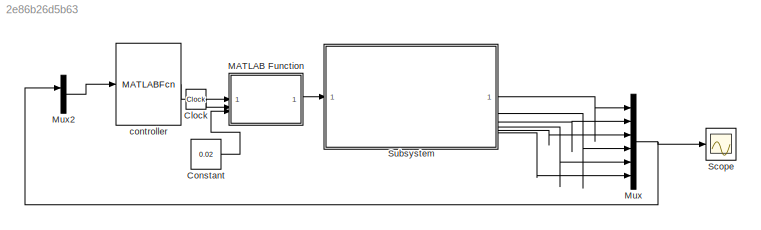
MODEL slx_2e86b26d5b63
KIND model
CONFIG AbsTol = auto
CONFIG EnableMultiTasking = off
CONFIG FixedStep = auto
CONFIG MaxStep = auto
CONFIG MinStep = auto
CONFIG RelTol = 1e-3
CONFIG SampleTimeConstraint = Unconstrained
CONFIG SolverName = VariableStepAuto
CONFIG StartTime = 0.0
CONFIG StopTime = 10.0
BLOCK [Clock] Clock
BLOCK [Constant] Constant
  Value = 0.02
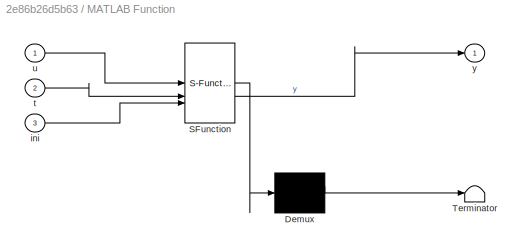
BLOCK [SubSystem] MATLAB Function
  ErrorFcn = Stateflow.Translate.translate
  PermitHierarchicalResolution = ExplicitOnly
  SFBlockType = MATLAB Function
  TreatAsAtomicUnit = on
BLOCK [Demux] MATLAB Function/ Demux 
  Outputs = 1
BLOCK [S-Function] MATLAB Function/ SFunction 
  EnableBusSupport = on
  FunctionName = sf_sfun
  PortCounts = [3 2]
  SFcnIsStateOwnerBlock = off
  SFunctionDeploymentMode = off
  Tag = Stateflow S-Function 1
BLOCK [Terminator] MATLAB Function/ Terminator 
BLOCK [Inport] MATLAB Function/ini
  Port = 3
BLOCK [Inport] MATLAB Function/t
  Port = 2
BLOCK [Inport] MATLAB Function/u
BLOCK [Outport] MATLAB Function/y
BLOCK [Mux] Mux
  DisplayOption = bar
  Inputs = 6
BLOCK [Mux] Mux2
  DisplayOption = bar
  Inputs = 1
BLOCK [Scope] Scope
  Floating = off
  NumInputPorts = 1
  ScopeSpecificationString = Simulink.scopes.TimeScopeBlockCfg('CurrentConfiguration', extmgr.ConfigurationSet(extmgr.Configuration('Core','General UI',true),extmgr.Configuration('Core','Source UI',true),extmgr.Configuration('Sources','WiredSimulink',true,'DataLoggingSaveFormat','Array','DataLoggingLimitDataPoints',true,'DataLoggingDecimation','1'),extmgr.Configuration('Visuals','Time Domain',true,'SerializedDisplays',{struct...<+1710ch>
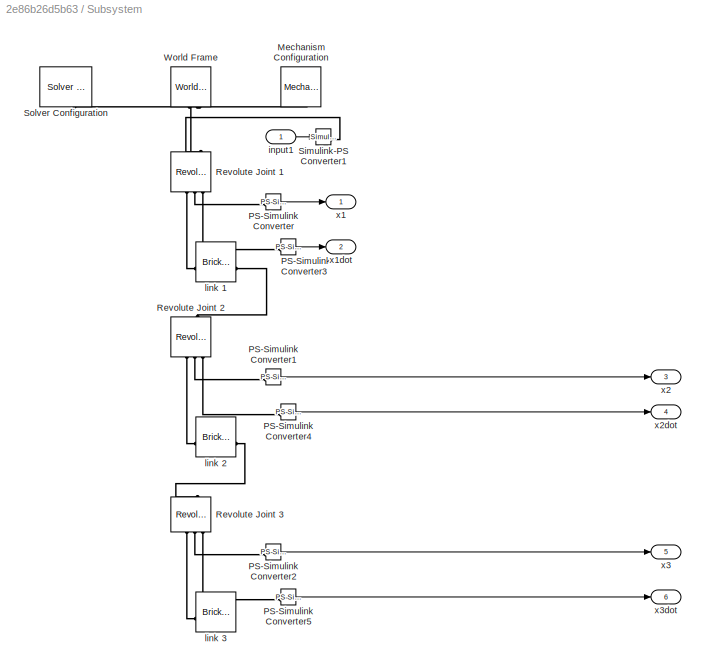
BLOCK [SubSystem] Subsystem
BLOCK [Reference] Subsystem/Mechanism Configuration  REF=sm_lib/Utilities/Mechanism
Configuration
  NameLocation = right
  SourceBlock = sm_lib/Utilities/Mechanism\nConfiguration
  SourceType = Mechanism\nConfiguration
BLOCK [Reference] Subsystem/PS-Simulink Converter  REF=nesl_utility/PS-Simulink
Converter
  SourceBlock = nesl_utility/PS-Simulink\nConverter
  SourceType = PS-Simulink\nConverter
BLOCK [Reference] Subsystem/PS-Simulink Converter1  REF=nesl_utility/PS-Simulink
Converter
  SourceBlock = nesl_utility/PS-Simulink\nConverter
  SourceType = PS-Simulink\nConverter
BLOCK [Reference] Subsystem/PS-Simulink Converter2  REF=nesl_utility/PS-Simulink
Converter
  SourceBlock = nesl_utility/PS-Simulink\nConverter
  SourceType = PS-Simulink\nConverter
BLOCK [Reference] Subsystem/PS-Simulink Converter3  REF=nesl_utility/PS-Simulink
Converter
  SourceBlock = nesl_utility/PS-Simulink\nConverter
  SourceType = PS-Simulink\nConverter
BLOCK [Reference] Subsystem/PS-Simulink Converter4  REF=nesl_utility/PS-Simulink
Converter
  SourceBlock = nesl_utility/PS-Simulink\nConverter
  SourceType = PS-Simulink\nConverter
BLOCK [Reference] Subsystem/PS-Simulink Converter5  REF=nesl_utility/PS-Simulink
Converter
  SourceBlock = nesl_utility/PS-Simulink\nConverter
  SourceType = PS-Simulink\nConverter
BLOCK [Reference] Subsystem/Revolute Joint 1  REF=sm_lib/Joints/Revolute Joint
  NameLocation = right
  SourceBlock = sm_lib/Joints/Revolute Joint
  SourceType = Revolute Joint
BLOCK [Reference] Subsystem/Revolute Joint 2  REF=sm_lib/Joints/Revolute Joint
  NameLocation = right
  SourceBlock = sm_lib/Joints/Revolute Joint
  SourceType = Revolute Joint
BLOCK [Reference] Subsystem/Revolute Joint 3  REF=sm_lib/Joints/Revolute Joint
  NameLocation = right
  SourceBlock = sm_lib/Joints/Revolute Joint
  SourceType = Revolute Joint
BLOCK [Reference] Subsystem/Simulink-PS Converter1  REF=nesl_utility/Simulink-PS
Converter
  SourceBlock = nesl_utility/Simulink-PS\nConverter
  SourceType = Simulink-PS\nConverter
BLOCK [Reference] Subsystem/Solver Configuration  REF=nesl_utility/Solver
Configuration
  NameLocation = right
  SourceBlock = nesl_utility/Solver\nConfiguration
  SourceType = Solver\nConfiguration
BLOCK [Reference] Subsystem/World Frame  REF=sm_lib/Frames and
Transforms/World Frame
  NameLocation = right
  SourceBlock = sm_lib/Frames and\nTransforms/World Frame
  SourceType = World Frame
BLOCK [Inport] Subsystem/input1
BLOCK [Reference] Subsystem/link 1  REF=sm_lib/Body Elements/Brick Solid
  NameLocation = top
  SourceBlock = sm_lib/Body Elements/Brick Solid
  SourceType = Brick Solid
BLOCK [Reference] Subsystem/link 2  REF=sm_lib/Body Elements/Brick Solid
  NameLocation = top
  SourceBlock = sm_lib/Body Elements/Brick Solid
  SourceType = Brick Solid
BLOCK [Reference] Subsystem/link 3  REF=sm_lib/Body Elements/Brick Solid
  NameLocation = top
  SourceBlock = sm_lib/Body Elements/Brick Solid
  SourceType = Brick Solid
BLOCK [Outport] Subsystem/x1
BLOCK [Outport] Subsystem/x1dot
  Port = 2
BLOCK [Outport] Subsystem/x2
  Port = 3
BLOCK [Outport] Subsystem/x2dot
  Port = 4
BLOCK [Outport] Subsystem/x3
  Port = 5
BLOCK [Outport] Subsystem/x3dot
  Port = 6
BLOCK [MATLABFcn] controller
  MATLABFcn = Fast_loop_controller
  OutputDimensions = 1
LINE Clock:1 -> MATLAB Function:2
LINE Constant:1 -> MATLAB Function:3
LINE MATLAB Function:1 -> Subsystem:1
LINE Mux2:1 -> controller:1
NET Mux:1 -> Mux2:1, Scope:1
LINE Subsystem/PS-Simulink Converter1:1 -> Subsystem/x2:1
LINE Subsystem/PS-Simulink Converter2:1 -> Subsystem/x3:1
LINE Subsystem/PS-Simulink Converter3:1 -> Subsystem/x1dot:1
LINE Subsystem/PS-Simulink Converter4:1 -> Subsystem/x2dot:1
LINE Subsystem/PS-Simulink Converter5:1 -> Subsystem/x3dot:1
LINE Subsystem/PS-Simulink Converter:1 -> Subsystem/x1:1
LINE Subsystem/input1:1 -> Subsystem/Simulink-PS Converter1:1
LINE Subsystem:1 -> Mux:1
LINE Subsystem:2 -> Mux:4
LINE Subsystem:3 -> Mux:2
LINE Subsystem:4 -> Mux:5
LINE Subsystem:5 -> Mux:3
LINE Subsystem:6 -> Mux:6
LINE controller:1 -> MATLAB Function:1
PNET net1: Subsystem/Mechanism Configuration:RConn1 -- Subsystem/Revolute Joint 1:LConn1 -- Subsystem/Solver Configuration:RConn1 -- Subsystem/World Frame:RConn1
PLINE Subsystem/PS-Simulink Converter1:LConn1 -- Subsystem/Revolute Joint 2:RConn2
PLINE Subsystem/PS-Simulink Converter2:LConn1 -- Subsystem/Revolute Joint 3:RConn2
PLINE Subsystem/PS-Simulink Converter3:LConn1 -- Subsystem/Revolute Joint 1:RConn3
PLINE Subsystem/PS-Simulink Converter4:LConn1 -- Subsystem/Revolute Joint 2:RConn3
PLINE Subsystem/PS-Simulink Converter5:LConn1 -- Subsystem/Revolute Joint 3:RConn3
PLINE Subsystem/PS-Simulink Converter:LConn1 -- Subsystem/Revolute Joint 1:RConn2
PLINE Subsystem/Revolute Joint 1:LConn2 -- Subsystem/Simulink-PS Converter1:RConn1
PLINE Subsystem/Revolute Joint 1:RConn1 -- Subsystem/link 1:LConn1
PLINE Subsystem/Revolute Joint 2:LConn1 -- Subsystem/link 1:RConn1
PLINE Subsystem/Revolute Joint 2:RConn1 -- Subsystem/link 2:LConn1
PLINE Subsystem/Revolute Joint 3:LConn1 -- Subsystem/link 2:RConn1
PLINE Subsystem/Revolute Joint 3:RConn1 -- Subsystem/link 3:LConn1
note: NET lines group one-source signal fan-out (src -> all destinations, sorted); 1:1 wires keep LINE; PNET lines group multi-terminal physical nets as a canonical sorted terminal list (undirected conserving connections); 2-terminal nets keep the pairwise PLINE form
CHART MATLAB Function states=1 transitions=1
  STATE_LABEL 'eML_blk_kernel()'
  STATE_LABEL 'SCRIPT:\nfunction y = fcn(u,t,ini)\n\nif t < 0.002\n    y = ini;\nelse\n    y = u;\nend\n\n'
CHART  states=0 transitions=0
